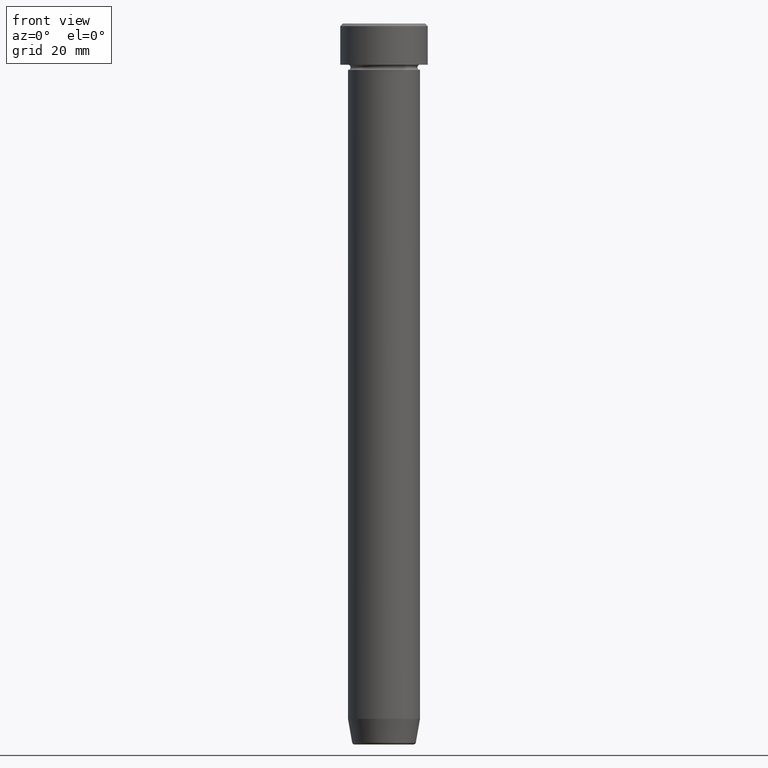
[diagram: clean part render]
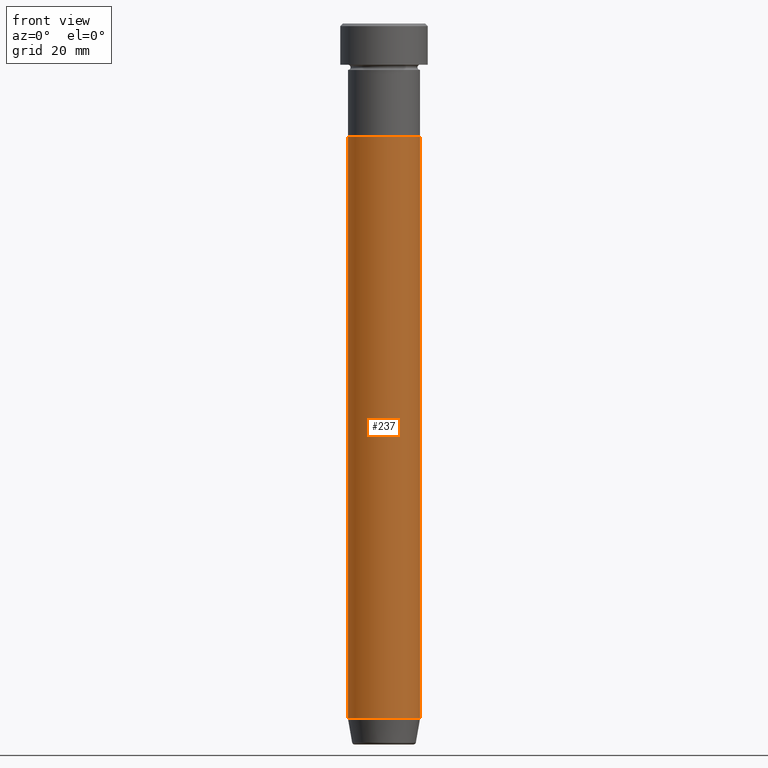
[diagram: same view with one face highlighted and labeled with its STEP entity id]
A machine part, front view. The second image highlights one B-rep face of the part: STEP entity #237.
In plain terms, the highlighted cylindrical surface (edge-blend (fillet) strip) has radius 7 mm, axis along (-0, -0, 1).
Its self-contained STEP definition (entity closure, byte-faithful):
#17 = VERTEX_POINT ( 'NONE', #201 ) ;
#31 = EDGE_CURVE ( 'NONE', #133, #563, #317, .T. ) ;
#46 = AXIS2_PLACEMENT_3D ( 'NONE', #301, #63, #254 ) ;
#51 = CARTESIAN_POINT ( 'NONE',  ( -6.999999999999999112, 8.572527594031472204E-16, -22.00000000000000000 ) ) ;
#63 = DIRECTION ( 'NONE',  ( -0.000000000000000000, -0.000000000000000000, 1.000000000000000000 ) ) ;
#66 = CARTESIAN_POINT ( 'NONE',  ( 0.000000000000000000, 0.000000000000000000, 0.000000000000000000 ) ) ;
#84 = EDGE_LOOP ( 'NONE', ( #531, #430, #331, #555 ) ) ;
#104 = CARTESIAN_POINT ( 'NONE',  ( 6.999999999999999112, 0.000000000000000000, -22.00000000000000000 ) ) ;
#119 = EDGE_CURVE ( 'NONE', #274, #133, #195, .T. ) ;
#133 = VERTEX_POINT ( 'NONE', #51 ) ;
#167 = EDGE_CURVE ( 'NONE', #274, #17, #488, .T. ) ;
#169 = CARTESIAN_POINT ( 'NONE',  ( 6.999999999999999112, 0.000000000000000000, 0.000000000000000000 ) ) ;
#192 = DIRECTION ( 'NONE',  ( -0.000000000000000000, -0.000000000000000000, 1.000000000000000000 ) ) ;
#195 = LINE ( 'NONE', #241, #469 ) ;
#201 = CARTESIAN_POINT ( 'NONE',  ( 6.999999999999999112, 0.000000000000000000, -134.9999999999999716 ) ) ;
#237 = ADVANCED_FACE ( 'NONE', ( #479 ), #394, .T. ) ;
#241 = CARTESIAN_POINT ( 'NONE',  ( -6.999999999999999112, 8.572527594031472204E-16, 0.000000000000000000 ) ) ;
#254 = DIRECTION ( 'NONE',  ( 1.000000000000000000, 0.000000000000000000, 0.000000000000000000 ) ) ;
#256 = DIRECTION ( 'NONE',  ( 1.000000000000000000, 0.000000000000000000, 0.000000000000000000 ) ) ;
#274 = VERTEX_POINT ( 'NONE', #426 ) ;
#301 = CARTESIAN_POINT ( 'NONE',  ( 0.000000000000000000, 0.000000000000000000, -22.00000000000000000 ) ) ;
#315 = DIRECTION ( 'NONE',  ( -0.000000000000000000, -0.000000000000000000, 1.000000000000000000 ) ) ;
#317 = CIRCLE ( 'NONE', #46, 6.999999999999999112 ) ;
#320 = AXIS2_PLACEMENT_3D ( 'NONE', #66, #574, #256 ) ;
#331 = ORIENTED_EDGE ( 'NONE', *, *, #333, .T. ) ;
#333 = EDGE_CURVE ( 'NONE', #17, #563, #506, .T. ) ;
#383 = CARTESIAN_POINT ( 'NONE',  ( 0.000000000000000000, 0.000000000000000000, -134.9999999999999716 ) ) ;
#394 = CYLINDRICAL_SURFACE ( 'NONE', #320, 6.999999999999999112 ) ;
#426 = CARTESIAN_POINT ( 'NONE',  ( -6.999999999999999112, 8.572527594031472204E-16, -134.9999999999999716 ) ) ;
#430 = ORIENTED_EDGE ( 'NONE', *, *, #167, .T. ) ;
#463 = DIRECTION ( 'NONE',  ( 1.000000000000000000, 0.000000000000000000, 0.000000000000000000 ) ) ;
#469 = VECTOR ( 'NONE', #192, 1000.000000000000000 ) ;
#476 = DIRECTION ( 'NONE',  ( -0.000000000000000000, -0.000000000000000000, 1.000000000000000000 ) ) ;
#479 = FACE_OUTER_BOUND ( 'NONE', #84, .T. ) ;
#488 = CIRCLE ( 'NONE', #535, 6.999999999999999112 ) ;
#503 = VECTOR ( 'NONE', #315, 1000.000000000000000 ) ;
#506 = LINE ( 'NONE', #169, #503 ) ;
#531 = ORIENTED_EDGE ( 'NONE', *, *, #119, .F. ) ;
#535 = AXIS2_PLACEMENT_3D ( 'NONE', #383, #476, #463 ) ;
#555 = ORIENTED_EDGE ( 'NONE', *, *, #31, .F. ) ;
#563 = VERTEX_POINT ( 'NONE', #104 ) ;
#574 = DIRECTION ( 'NONE',  ( -0.000000000000000000, -0.000000000000000000, 1.000000000000000000 ) ) ;